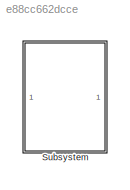
MODEL slx_e88cc662dcce
KIND model
CONFIG AbsTol = auto
CONFIG EnableMultiTasking = off
CONFIG FixedStep = auto
CONFIG MaxStep = auto
CONFIG MinStep = auto
CONFIG RelTol = 1e-3
CONFIG SampleTimeConstraint = Unconstrained
CONFIG SolverName = VariableStepAuto
CONFIG StartTime = 0.0
CONFIG StopTime = 2000
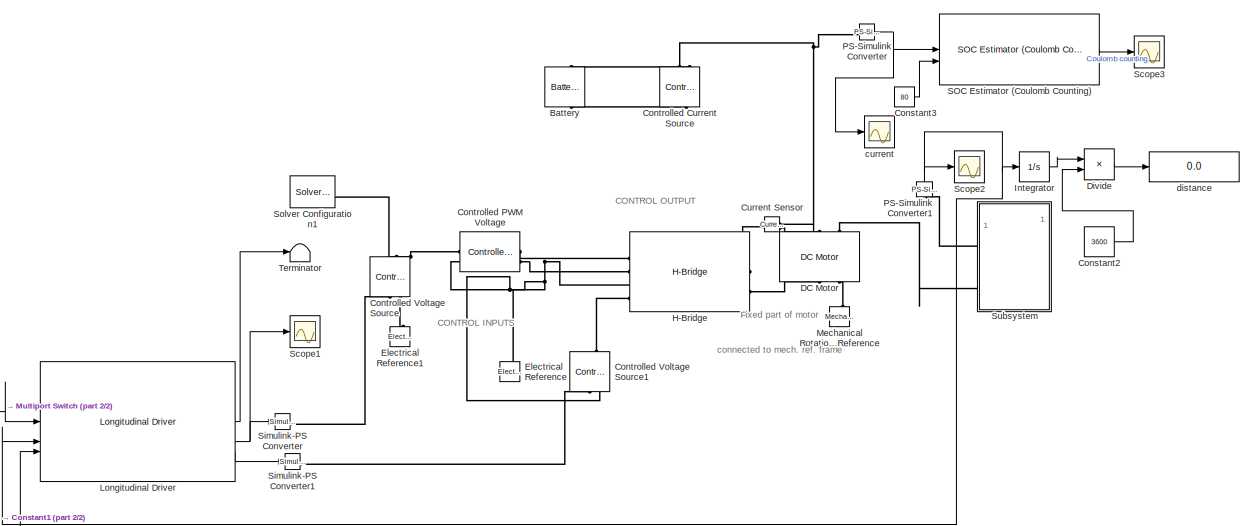
[diagram: Subsystem - part 1/2, most of the canvas]
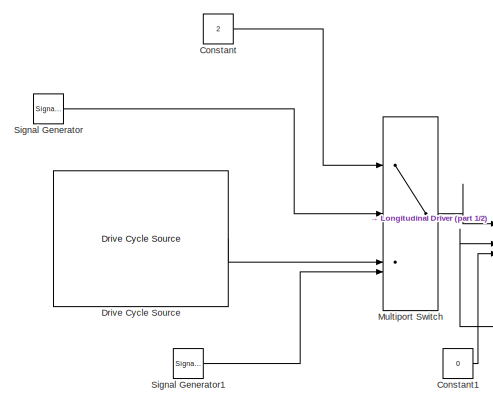
[diagram: Subsystem - part 2/2, middle left region]
BLOCK [SubSystem] Subsystem
BLOCK [Reference] Subsystem/Battery  REF=batteryecm_lib/Battery
  LibrarySourceBlock = ee_lib/Sources/Battery
  NameLocation = right
  SourceBlock = batteryecm_lib/Battery
  SourceType = Battery
BLOCK [Constant] Subsystem/Constant
  Value = 2
BLOCK [Constant] Subsystem/Constant1
  Value = 0
BLOCK [Constant] Subsystem/Constant2
  Value = 3600
BLOCK [Constant] Subsystem/Constant3
  Value = 80
BLOCK [Reference] Subsystem/Controlled Current Source  REF=fl_lib/Electrical/Electrical Sources/Controlled Current
Source
  NameLocation = left
  SourceBlock = fl_lib/Electrical/Electrical Sources/Controlled Current\nSource
  SourceType = Controlled Current\nSource
BLOCK [Reference] Subsystem/Controlled PWM Voltage  REF=ee_lib/Integrated Circuits/Controlled PWM
Voltage
  SourceBlock = ee_lib/Integrated Circuits/Controlled PWM\nVoltage
  SourceType = Controlled PWM\nVoltage
BLOCK [Reference] Subsystem/Controlled Voltage Source  REF=fl_lib/Electrical/Electrical Sources/Controlled Voltage
Source
  NameLocation = right
  SourceBlock = fl_lib/Electrical/Electrical Sources/Controlled Voltage\nSource
  SourceType = Controlled Voltage\nSource
BLOCK [Reference] Subsystem/Controlled Voltage Source1  REF=fl_lib/Electrical/Electrical Sources/Controlled Voltage
Source
  NameLocation = right
  SourceBlock = fl_lib/Electrical/Electrical Sources/Controlled Voltage\nSource
  SourceType = Controlled Voltage\nSource
BLOCK [Reference] Subsystem/Current Sensor  REF=fl_lib/Electrical/Electrical Sensors/Current Sensor
  SourceBlock = fl_lib/Electrical/Electrical Sensors/Current Sensor
  SourceType = Current Sensor
BLOCK [Reference] Subsystem/DC Motor  REF=ee_lib/Electromechanical/Brushed Motors/DC Motor
  NameLocation = right
  SourceBlock = ee_lib/Electromechanical/Brushed Motors/DC Motor
  SourceType = DC Motor
BLOCK [Product] Subsystem/Divide
  Inputs = */
BLOCK [Reference] Subsystem/Drive Cycle Source  REF=autolibshared/Drive Cycle Source
  AttributesFormatString = %<cycleVar> (%<tfinal>)
  LibrarySourceBlock = vdynlib/Vehicle Scenarios/Drive Cycle and Maneuvers/Drive Cycle Source
  SourceBlock = autolibshared/Drive Cycle Source
  SourceType = Drive Cycle Source
BLOCK [Reference] Subsystem/Electrical Reference  REF=fl_lib/Electrical/Electrical Elements/Electrical Reference
  NameLocation = right
  SourceBlock = fl_lib/Electrical/Electrical Elements/Electrical Reference
  SourceType = Electrical Reference
BLOCK [Reference] Subsystem/Electrical Reference1  REF=fl_lib/Electrical/Electrical Elements/Electrical Reference
  NameLocation = right
  SourceBlock = fl_lib/Electrical/Electrical Elements/Electrical Reference
  SourceType = Electrical Reference
BLOCK [Reference] Subsystem/H-Bridge  REF=ee_lib/Semiconductors &
Converters/Converters/H-Bridge
  SourceBlock = ee_lib/Semiconductors &\nConverters/Converters/H-Bridge
  SourceType = H-Bridge
BLOCK [Integrator] Subsystem/Integrator
BLOCK [Reference] Subsystem/Longitudinal Driver  REF=autolibshared/Longitudinal Driver
  LibrarySourceBlock = autolibscenario/Longitudinal Driver
  SourceBlock = autolibshared/Longitudinal Driver
  SourceType = Longitudinal Driver
BLOCK [Reference] Subsystem/Mechanical Rotational Reference  REF=fl_lib/Mechanical/Rotational Elements/Mechanical
Rotational Reference
  NameLocation = right
  SourceBlock = fl_lib/Mechanical/Rotational Elements/Mechanical\nRotational Reference
  SourceType = Mechanical\nRotational Reference
BLOCK [MultiPortSwitch] Subsystem/Multiport Switch
  InputSameDT = off
  SaturateOnIntegerOverflow = off
BLOCK [Reference] Subsystem/PS-Simulink Converter  REF=nesl_utility/PS-Simulink
Converter
  SourceBlock = nesl_utility/PS-Simulink\nConverter
  SourceType = PS-Simulink\nConverter
BLOCK [Reference] Subsystem/PS-Simulink Converter1  REF=nesl_utility/PS-Simulink
Converter
  NameLocation = right
  SourceBlock = nesl_utility/PS-Simulink\nConverter
  SourceType = PS-Simulink\nConverter
BLOCK [Reference] Subsystem/SOC Estimator (Coulomb Counting)  REF=BatteryEstimators/SOC Estimator
(Coulomb Counting)
  LibrarySourceBlock = batt_sl_lib/Estimators/SOC Estimator\n(Coulomb Counting)
  SourceBlock = BatteryEstimators/SOC Estimator\n(Coulomb Counting)
  SourceType = SOC Estimator (Coulomb Counting)
BLOCK [Scope] Subsystem/Scope1
  Floating = off
  NumInputPorts = 1
  ScopeSpecificationString = Simulink.scopes.TimeScopeBlockCfg('CurrentConfiguration', extmgr.ConfigurationSet(extmgr.Configuration('Core','General UI',true),extmgr.Configuration('Core','Source UI',true),extmgr.Configuration('Sources','WiredSimulink',true,'DataLoggingVariableName','ScopeData2'),extmgr.Configuration('Visuals','Time Domain',true),extmgr.Configuration('Tools','Plot Navigation',true),extmgr.Configuration('Tools',...<+40ch>
BLOCK [Scope] Subsystem/Scope2
  Floating = off
  NumInputPorts = 1
  ScopeSpecificationString = Simulink.scopes.TimeScopeBlockCfg('CurrentConfiguration', extmgr.ConfigurationSet(extmgr.Configuration('Core','General UI',true),extmgr.Configuration('Core','Source UI',true),extmgr.Configuration('Sources','WiredSimulink',true,'DataLoggingVariableName','ScopeData3'),extmgr.Configuration('Visuals','Time Domain',true),extmgr.Configuration('Tools','Plot Navigation',true),extmgr.Configuration('Tools',...<+40ch>
BLOCK [Scope] Subsystem/Scope3
  Floating = off
  NumInputPorts = 1
  ScopeSpecificationString = Simulink.scopes.TimeScopeBlockCfg('CurrentConfiguration', extmgr.ConfigurationSet(extmgr.Configuration('Core','General UI',true),extmgr.Configuration('Core','Source UI',true),extmgr.Configuration('Sources','WiredSimulink',true,'DataLoggingVariableName','ScopeData4'),extmgr.Configuration('Visuals','Time Domain',true),extmgr.Configuration('Tools','Plot Navigation',true),extmgr.Configuration('Tools',...<+40ch>
BLOCK [SignalGenerator] Subsystem/Signal Generator
  Units = rad/sec
BLOCK [SignalGenerator] Subsystem/Signal Generator1
  Units = rad/sec
BLOCK [Reference] Subsystem/Simulink-PS Converter  REF=nesl_utility/Simulink-PS
Converter
  SourceBlock = nesl_utility/Simulink-PS\nConverter
  SourceType = Simulink-PS\nConverter
BLOCK [Reference] Subsystem/Simulink-PS Converter1  REF=nesl_utility/Simulink-PS
Converter
  SourceBlock = nesl_utility/Simulink-PS\nConverter
  SourceType = Simulink-PS\nConverter
BLOCK [Reference] Subsystem/Solver Configuration1  REF=nesl_utility/Solver
Configuration
  SourceBlock = nesl_utility/Solver\nConfiguration
  SourceType = Solver\nConfiguration
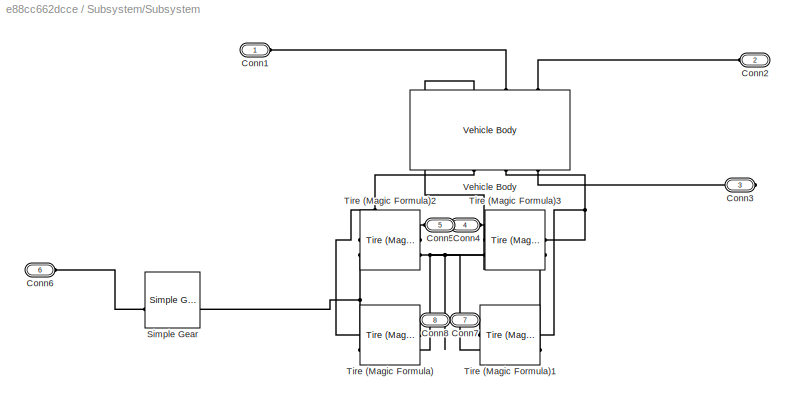
BLOCK [SubSystem] Subsystem/Subsystem
BLOCK [PMIOPort] Subsystem/Subsystem/Conn1
  Side = Left
BLOCK [PMIOPort] Subsystem/Subsystem/Conn2
  Port = 2
  Side = Left
BLOCK [PMIOPort] Subsystem/Subsystem/Conn3
  Port = 3
  Side = Right
BLOCK [PMIOPort] Subsystem/Subsystem/Conn4
  Port = 4
  Side = Right
BLOCK [PMIOPort] Subsystem/Subsystem/Conn5
  Port = 5
  Side = Right
BLOCK [PMIOPort] Subsystem/Subsystem/Conn6
  Port = 6
  Side = Left
BLOCK [PMIOPort] Subsystem/Subsystem/Conn7
  Port = 7
  Side = Right
BLOCK [PMIOPort] Subsystem/Subsystem/Conn8
  Port = 8
  Side = Right
BLOCK [Reference] Subsystem/Subsystem/Simple Gear  REF=sdl_lib/Gears/Simple Gear
  SourceBlock = sdl_lib/Gears/Simple Gear
  SourceType = Simple Gear
BLOCK [Reference] Subsystem/Subsystem/Tire (Magic Formula)  REF=sdl_lib/Tires & Vehicles/Tire (Magic Formula)
  SourceBlock = sdl_lib/Tires & Vehicles/Tire (Magic Formula)
  SourceType = Tire (Magic Formula)
BLOCK [Reference] Subsystem/Subsystem/Tire (Magic Formula)1  REF=sdl_lib/Tires & Vehicles/Tire (Magic Formula)
  SourceBlock = sdl_lib/Tires & Vehicles/Tire (Magic Formula)
  SourceType = Tire (Magic Formula)
BLOCK [Reference] Subsystem/Subsystem/Tire (Magic Formula)2  REF=sdl_lib/Tires & Vehicles/Tire (Magic Formula)
  SourceBlock = sdl_lib/Tires & Vehicles/Tire (Magic Formula)
  SourceType = Tire (Magic Formula)
BLOCK [Reference] Subsystem/Subsystem/Tire (Magic Formula)3  REF=sdl_lib/Tires & Vehicles/Tire (Magic Formula)
  SourceBlock = sdl_lib/Tires & Vehicles/Tire (Magic Formula)
  SourceType = Tire (Magic Formula)
BLOCK [Reference] Subsystem/Subsystem/Vehicle Body  REF=sdl_lib/Tires & Vehicles/Vehicle Body
  NameLocation = right
  SourceBlock = sdl_lib/Tires & Vehicles/Vehicle Body
  SourceType = Vehicle Body
BLOCK [Terminator] Subsystem/Terminator
BLOCK [Scope] Subsystem/current
  Floating = off
  NumInputPorts = 1
  ScopeSpecificationString = Simulink.scopes.TimeScopeBlockCfg('CurrentConfiguration', extmgr.ConfigurationSet(extmgr.Configuration('Core','General UI',true),extmgr.Configuration('Core','Source UI',true),extmgr.Configuration('Sources','WiredSimulink',true,'DataLoggingVariableName','ScopeData1'),extmgr.Configuration('Visuals','Time Domain',true),extmgr.Configuration('Tools','Plot Navigation',true),extmgr.Configuration('Tools',...<+40ch>
BLOCK [Display] Subsystem/distance
  Decimation = 1
ANNOTATION Subsystem: CONTROL INPUTS
ANNOTATION Subsystem: CONTROL OUTPUT
ANNOTATION Subsystem: Fixed part of motor connected to mech. ref. frame
LINE Subsystem/Constant1:1 -> Subsystem/Longitudinal Driver:3
LINE Subsystem/Constant2:1 -> Subsystem/Divide:2
LINE Subsystem/Constant3:1 -> Subsystem/SOC Estimator (Coulomb Counting):2
LINE Subsystem/Constant:1 -> Subsystem/Multiport Switch:1
LINE Subsystem/Divide:1 -> Subsystem/distance:1
LINE Subsystem/Drive Cycle Source:1 -> Subsystem/Multiport Switch:3
LINE Subsystem/Integrator:1 -> Subsystem/Divide:1
LINE Subsystem/Longitudinal Driver:1 -> Subsystem/Terminator:1
NET Subsystem/Longitudinal Driver:2 -> Subsystem/Scope1:1, Subsystem/Simulink-PS Converter:1
LINE Subsystem/Longitudinal Driver:3 -> Subsystem/Simulink-PS Converter1:1
LINE Subsystem/Multiport Switch:1 -> Subsystem/Longitudinal Driver:1
NET Subsystem/PS-Simulink Converter1:1 -> Subsystem/Integrator:1, Subsystem/Longitudinal Driver:2, Subsystem/Scope2:1
NET Subsystem/PS-Simulink Converter:1 -> Subsystem/SOC Estimator (Coulomb Counting):1, Subsystem/current:1
LINE Subsystem/SOC Estimator (Coulomb Counting):1 -> Subsystem/Scope3:1
LINE Subsystem/Signal Generator1:1 -> Subsystem/Multiport Switch:4
LINE Subsystem/Signal Generator:1 -> Subsystem/Multiport Switch:2
PLINE Subsystem/Battery:LConn1 -- Subsystem/Controlled Current Source:RConn2
PLINE Subsystem/Battery:RConn1 -- Subsystem/Controlled Current Source:LConn1
PNET net1: Subsystem/Controlled Current Source:RConn1 -- Subsystem/Current Sensor:RConn1 -- Subsystem/PS-Simulink Converter:LConn1
PNET net2: Subsystem/Controlled PWM Voltage:LConn1 -- Subsystem/Controlled Voltage Source:LConn1 -- Subsystem/Solver Configuration1:RConn1
PNET net3: Subsystem/Controlled PWM Voltage:LConn2 -- Subsystem/Controlled PWM Voltage:RConn2 -- Subsystem/Controlled Voltage Source1:RConn2 -- Subsystem/Electrical Reference:LConn1 -- Subsystem/H-Bridge:LConn2 -- Subsystem/H-Bridge:LConn3
PLINE Subsystem/Controlled PWM Voltage:RConn1 -- Subsystem/H-Bridge:LConn1
PLINE Subsystem/Controlled Voltage Source1:LConn1 -- Subsystem/H-Bridge:LConn4
PLINE Subsystem/Controlled Voltage Source1:RConn1 -- Subsystem/Simulink-PS Converter1:RConn1
PLINE Subsystem/Controlled Voltage Source:RConn1 -- Subsystem/Simulink-PS Converter:RConn1
PLINE Subsystem/Controlled Voltage Source:RConn2 -- Subsystem/Electrical Reference1:LConn1
PLINE Subsystem/Current Sensor:LConn1 -- Subsystem/H-Bridge:RConn1
PLINE Subsystem/Current Sensor:RConn2 -- Subsystem/DC Motor:LConn1
PLINE Subsystem/DC Motor:LConn2 -- Subsystem/Subsystem:LConn3
PLINE Subsystem/DC Motor:RConn1 -- Subsystem/H-Bridge:RConn2
PLINE Subsystem/DC Motor:RConn2 -- Subsystem/Mechanical Rotational Reference:LConn1
PLINE Subsystem/PS-Simulink Converter1:LConn1 -- Subsystem/Subsystem:LConn1
PLINE Subsystem/Subsystem/Conn1:RConn1 -- Subsystem/Subsystem/Vehicle Body:LConn2
PLINE Subsystem/Subsystem/Conn2:RConn1 -- Subsystem/Subsystem/Vehicle Body:LConn3
PLINE Subsystem/Subsystem/Conn3:RConn1 -- Subsystem/Subsystem/Vehicle Body:RConn3
PLINE Subsystem/Subsystem/Conn4:RConn1 -- Subsystem/Subsystem/Tire (Magic Formula)2:RConn1
PLINE Subsystem/Subsystem/Conn5:RConn1 -- Subsystem/Subsystem/Tire (Magic Formula)3:RConn1
PLINE Subsystem/Subsystem/Conn6:RConn1 -- Subsystem/Subsystem/Simple Gear:LConn1
PLINE Subsystem/Subsystem/Conn7:RConn1 -- Subsystem/Subsystem/Tire (Magic Formula):RConn1
PLINE Subsystem/Subsystem/Conn8:RConn1 -- Subsystem/Subsystem/Tire (Magic Formula)1:RConn1
PNET net4: Subsystem/Subsystem/Simple Gear:RConn1 -- Subsystem/Subsystem/Tire (Magic Formula)2:LConn2 -- Subsystem/Subsystem/Tire (Magic Formula):LConn2
PNET net5: Subsystem/Subsystem/Tire (Magic Formula)1:LConn1 -- Subsystem/Subsystem/Tire (Magic Formula)3:LConn1 -- Subsystem/Subsystem/Vehicle Body:RConn2
PLINE Subsystem/Subsystem/Tire (Magic Formula)1:LConn2 -- Subsystem/Subsystem/Tire (Magic Formula)3:LConn2
PNET net6: Subsystem/Subsystem/Tire (Magic Formula)1:RConn2 -- Subsystem/Subsystem/Tire (Magic Formula)2:RConn2 -- Subsystem/Subsystem/Tire (Magic Formula)3:RConn2 -- Subsystem/Subsystem/Tire (Magic Formula):RConn2 -- Subsystem/Subsystem/Vehicle Body:LConn1
PNET net7: Subsystem/Subsystem/Tire (Magic Formula)2:LConn1 -- Subsystem/Subsystem/Tire (Magic Formula):LConn1 -- Subsystem/Subsystem/Vehicle Body:RConn1
note: NET lines group one-source signal fan-out (src -> all destinations, sorted); 1:1 wires keep LINE; PNET lines group multi-terminal physical nets as a canonical sorted terminal list (undirected conserving connections); 2-terminal nets keep the pairwise PLINE form
